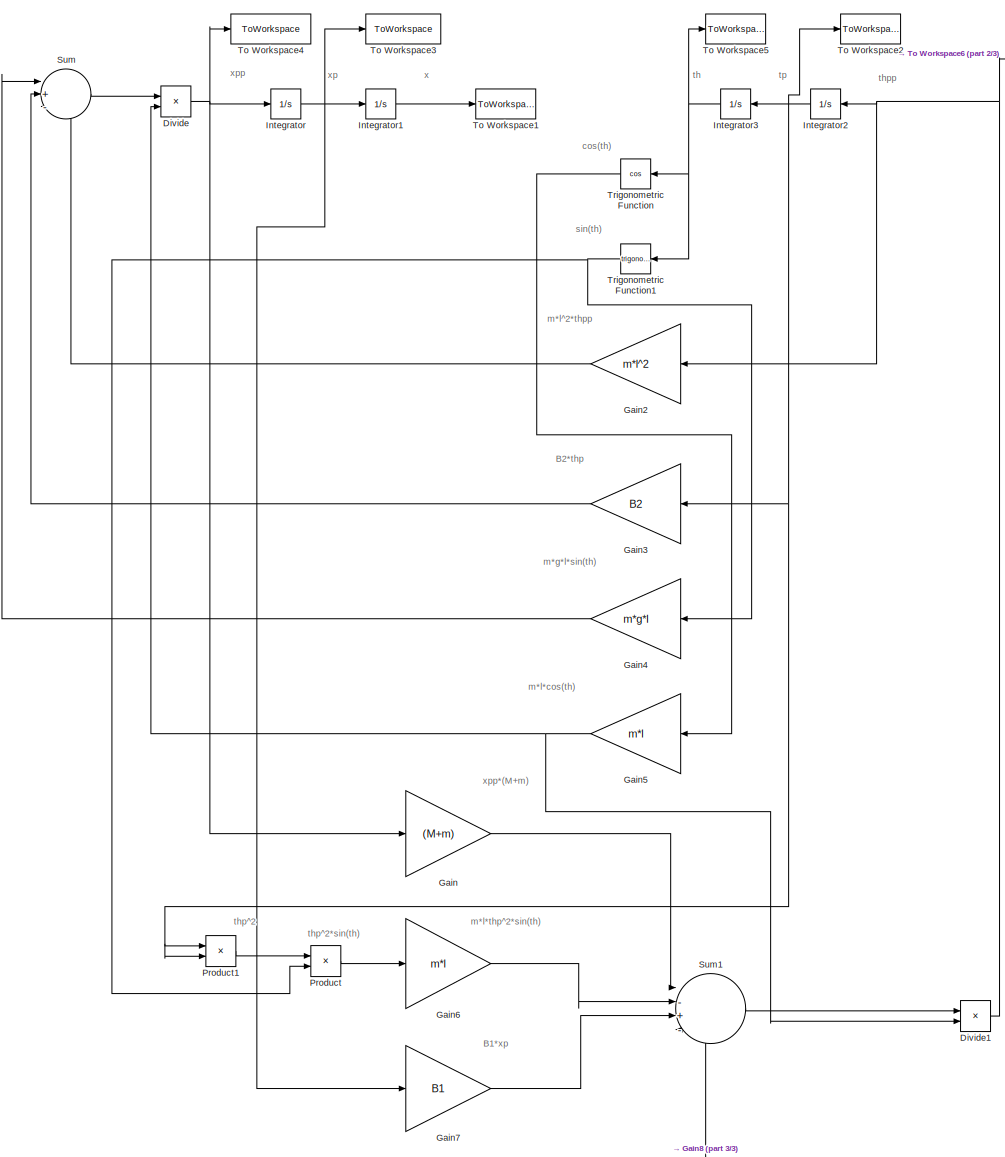
[diagram: root canvas - part 1/3, most of the canvas]
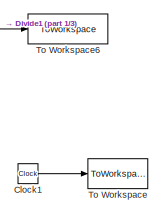
[diagram: root canvas - part 2/3, top right region]
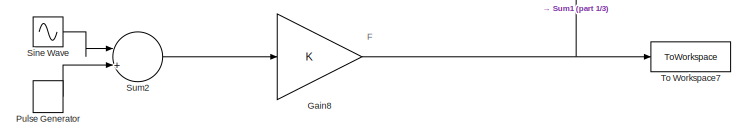
[diagram: root canvas - part 3/3, bottom center region]
MODEL slx_8d3048e5c568
KIND model
CONFIG InitFcn = M=0.2;m=0.1;l=0.3;B1=0;B2=0;g=-9.81;
CONFIG StartFcn = M=0.2;m=0.1;l=0.3;B1=0;B2=0;g=-9.81;
BLOCK [Clock] Clock1
  Decimation = 100
BLOCK [Product] Divide
  InputSameDT = off
  Inputs = */
  OutDataTypeStr = Inherit: Inherit via internal rule
  Ports = [2, 1]
  RndMeth = Floor
  SaturateOnIntegerOverflow = off
BLOCK [Product] Divide1
  InputSameDT = off
  Inputs = */
  OutDataTypeStr = Inherit: Inherit via internal rule
  Ports = [2, 1]
  RndMeth = Floor
  SaturateOnIntegerOverflow = off
BLOCK [Gain] Gain
  Gain = (M+m)
  OutDataTypeStr = Inherit: Inherit via internal rule
  ParamDataTypeStr = Inherit: Inherit via internal rule
  SaturateOnIntegerOverflow = off
BLOCK [Gain] Gain2
  Gain = m*l^2
  OutDataTypeStr = Inherit: Inherit via internal rule
  ParamDataTypeStr = Inherit: Inherit via internal rule
  SaturateOnIntegerOverflow = off
BLOCK [Gain] Gain3
  Gain = B2
  OutDataTypeStr = Inherit: Inherit via internal rule
  ParamDataTypeStr = Inherit: Inherit via internal rule
  SaturateOnIntegerOverflow = off
BLOCK [Gain] Gain4
  Gain = m*g*l
  OutDataTypeStr = Inherit: Inherit via internal rule
  ParamDataTypeStr = Inherit: Inherit via internal rule
  SaturateOnIntegerOverflow = off
BLOCK [Gain] Gain5
  Gain = m*l
  OutDataTypeStr = Inherit: Inherit via internal rule
  ParamDataTypeStr = Inherit: Inherit via internal rule
  SaturateOnIntegerOverflow = off
BLOCK [Gain] Gain6
  Gain = m*l
  OutDataTypeStr = Inherit: Inherit via internal rule
  ParamDataTypeStr = Inherit: Inherit via internal rule
  SaturateOnIntegerOverflow = off
BLOCK [Gain] Gain7
  Gain = B1
  OutDataTypeStr = Inherit: Inherit via internal rule
  ParamDataTypeStr = Inherit: Inherit via internal rule
  SaturateOnIntegerOverflow = off
BLOCK [Gain] Gain8
  OutDataTypeStr = Inherit: Inherit via internal rule
  ParamDataTypeStr = Inherit: Inherit via internal rule
  SaturateOnIntegerOverflow = off
BLOCK [Integrator] Integrator
  Ports = [1, 1]
BLOCK [Integrator] Integrator1
  Ports = [1, 1]
BLOCK [Integrator] Integrator2
  Ports = [1, 1]
BLOCK [Integrator] Integrator3
  Ports = [1, 1]
BLOCK [Product] Product
  InputSameDT = off
  OutDataTypeStr = Inherit: Inherit via internal rule
  Ports = [2, 1]
  RndMeth = Floor
  SaturateOnIntegerOverflow = off
BLOCK [Product] Product1
  InputSameDT = off
  OutDataTypeStr = Inherit: Inherit via internal rule
  Ports = [2, 1]
  RndMeth = Floor
  SaturateOnIntegerOverflow = off
BLOCK [DiscretePulseGenerator] Pulse Generator
  Amplitude = 15
  Ports = [0, 1]
  PulseType = Time based
  PulseWidth = 50
BLOCK [Sin] Sine Wave
  Amplitude = 0
  Ports = [0, 1]
  SampleTime = 0
BLOCK [Sum] Sum
  IconShape = round
  InputSameDT = off
  Inputs = |+--
  OutDataTypeStr = Inherit: Inherit via internal rule
  Ports = [3, 1]
  SaturateOnIntegerOverflow = off
BLOCK [Sum] Sum1
  IconShape = round
  InputSameDT = off
  Inputs = |-+-+
  OutDataTypeStr = Inherit: Inherit via internal rule
  Ports = [4, 1]
  SaturateOnIntegerOverflow = off
BLOCK [Sum] Sum2
  IconShape = round
  InputSameDT = off
  Inputs = |++
  OutDataTypeStr = Inherit: Inherit via internal rule
  Ports = [2, 1]
  SaturateOnIntegerOverflow = off
BLOCK [ToWorkspace] To Workspace
  MaxDataPoints = inf
  Ports = [1]
  SampleTime = 0.01
  VariableName = Tiempo
BLOCK [ToWorkspace] To Workspace1
  MaxDataPoints = inf
  Ports = [1]
  SampleTime = 0.01
  VariableName = Posicion_x
BLOCK [ToWorkspace] To Workspace2
  MaxDataPoints = inf
  Ports = [1]
  SampleTime = 0.01
  VariableName = Velocidad_th
BLOCK [ToWorkspace] To Workspace3
  MaxDataPoints = inf
  Ports = [1]
  SampleTime = 0.01
  VariableName = Velocidad_x
BLOCK [ToWorkspace] To Workspace4
  MaxDataPoints = inf
  Ports = [1]
  SampleTime = 0.01
  VariableName = Aceleracion_x
BLOCK [ToWorkspace] To Workspace5
  MaxDataPoints = inf
  Ports = [1]
  SampleTime = 0.01
  VariableName = Posicion_th
BLOCK [ToWorkspace] To Workspace6
  MaxDataPoints = inf
  Ports = [1]
  SampleTime = 0.01
  VariableName = Aceleracion_th
BLOCK [ToWorkspace] To Workspace7
  MaxDataPoints = inf
  Ports = [1]
  SampleTime = 0.01
  VariableName = Senal_Entrada
BLOCK [Trigonometry] Trigonometric Function
  Operator = cos
  Ports = [1, 1]
BLOCK [Trigonometry] Trigonometric Function1
  Ports = [1, 1]
ANNOTATION (root): B1*xp
ANNOTATION (root): B2*thp
ANNOTATION (root): F
ANNOTATION (root): cos(th)
ANNOTATION (root): m*g*l*sin(th)
ANNOTATION (root): m*l*cos(th)
ANNOTATION (root): m*l*thp^2*sin(th)
ANNOTATION (root): m*l^2*thpp
ANNOTATION (root): sin(th)
ANNOTATION (root): th
ANNOTATION (root): thp^2
ANNOTATION (root): thp^2*sin(th)
ANNOTATION (root): thpp
ANNOTATION (root): tp
ANNOTATION (root): x
ANNOTATION (root): xp
ANNOTATION (root): xpp
ANNOTATION (root): xpp*(M+m)
LINE Clock1:1 -> To Workspace:1
NET Divide1:1 -> Gain2:1, Integrator2:1, To Workspace6:1
NET Divide:1 -> Gain:1, Integrator:1, To Workspace4:1
LINE Gain2:1 -> Sum:3
LINE Gain3:1 -> Sum:2
LINE Gain4:1 -> Sum:1
NET Gain5:1 -> Divide1:2, Divide:2
LINE Gain6:1 -> Sum1:2
LINE Gain7:1 -> Sum1:3
NET Gain8:1 -> Sum1:4, To Workspace7:1
LINE Gain:1 -> Sum1:1
LINE Integrator1:1 -> To Workspace1:1
NET Integrator2:1 -> Gain3:1, Integrator3:1, Product1:1, Product1:2, To Workspace2:1
NET Integrator3:1 -> To Workspace5:1, Trigonometric Function1:1, Trigonometric Function:1
NET Integrator:1 -> Gain7:1, Integrator1:1, To Workspace3:1
LINE Product1:1 -> Product:1
LINE Product:1 -> Gain6:1
LINE Pulse Generator:1 -> Sum2:2
LINE Sine Wave:1 -> Sum2:1
LINE Sum1:1 -> Divide1:1
LINE Sum2:1 -> Gain8:1
LINE Sum:1 -> Divide:1
NET Trigonometric Function1:1 -> Gain4:1, Product:2
LINE Trigonometric Function:1 -> Gain5:1
note: NET lines group one-source signal fan-out (src -> all destinations, sorted); 1:1 wires keep LINE
